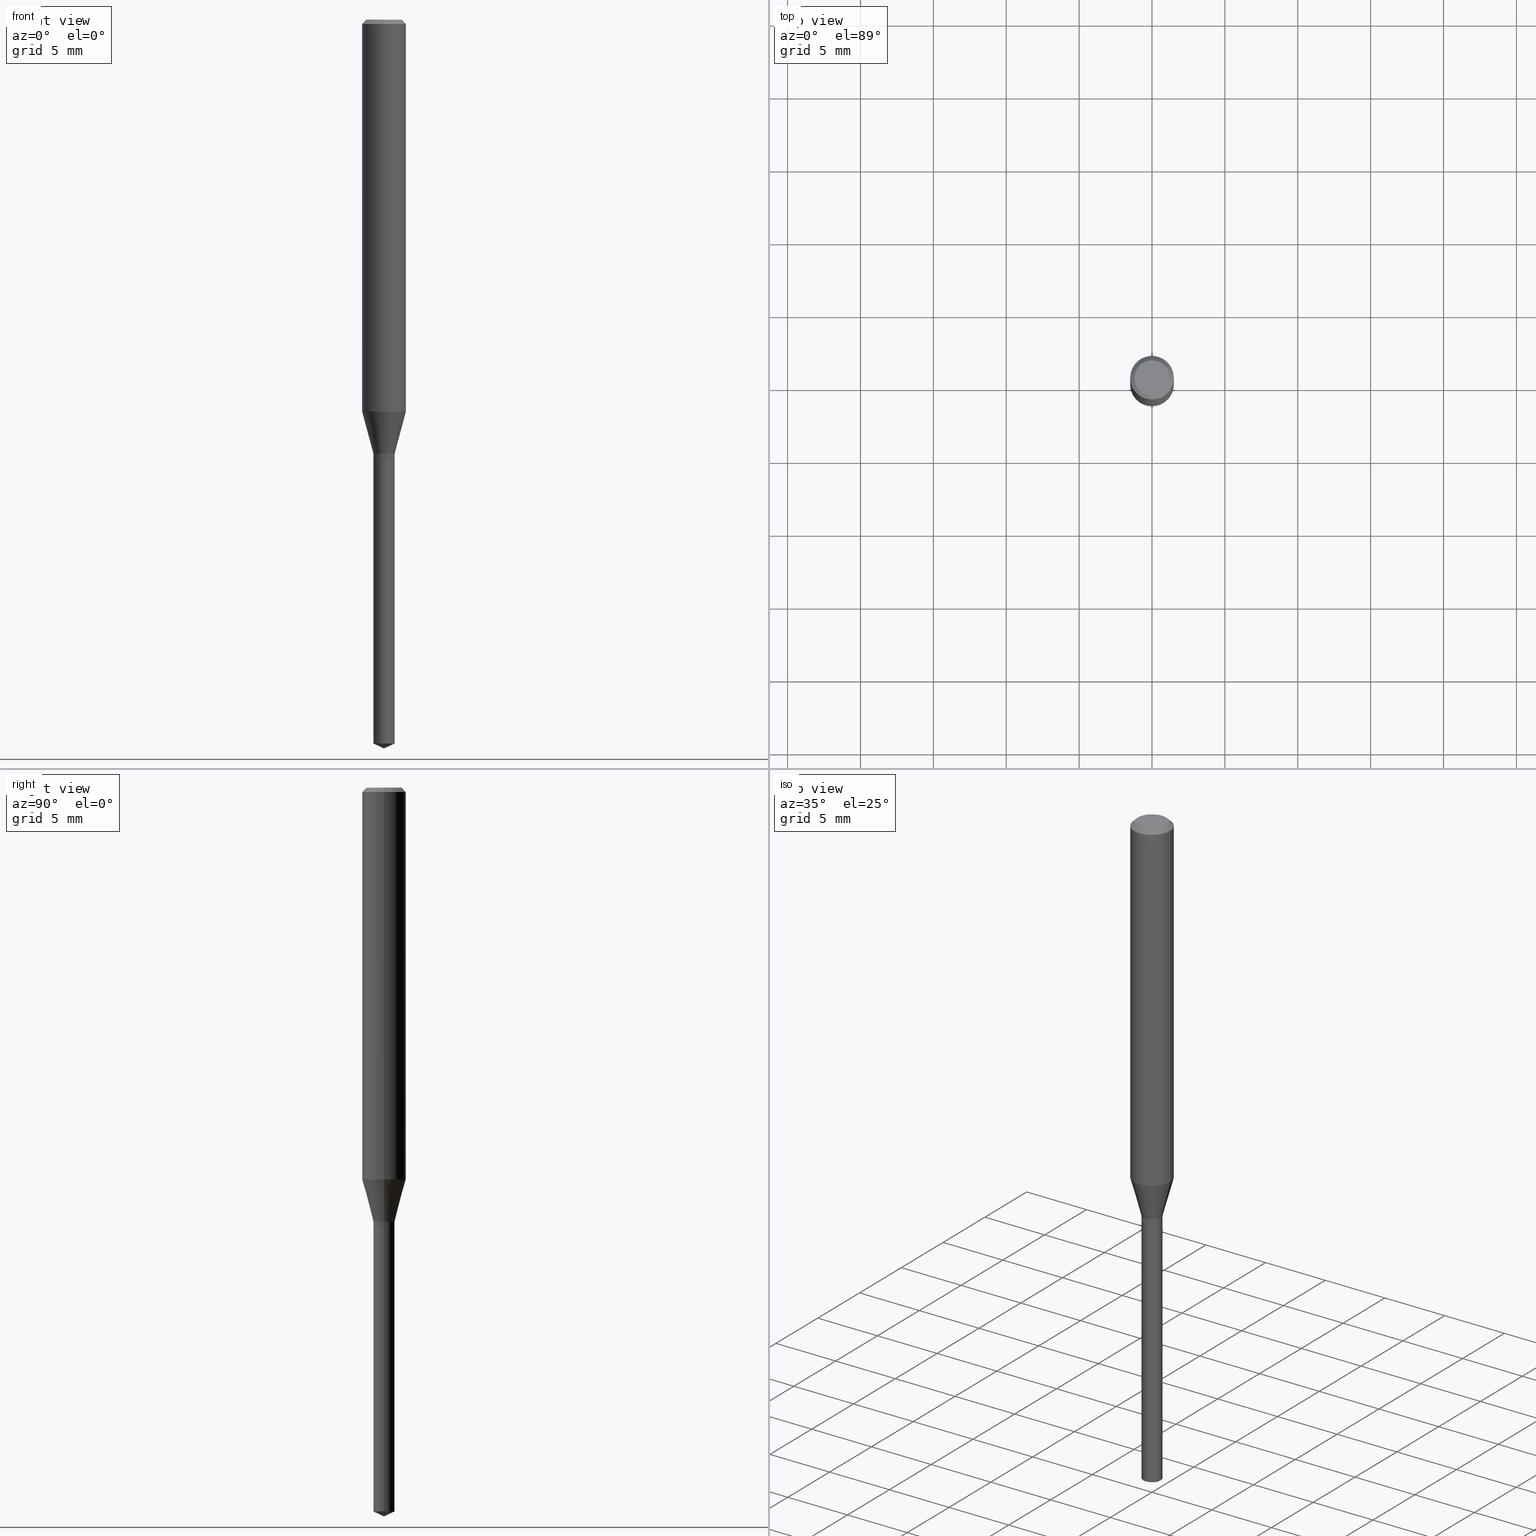
[diagram: canonical four-view strip — front | top / right | iso, engineering-drawing reading convention]
A machine part, canonical four-view strip (front | top / right | iso — engineering-drawing reading convention). The complete STEP part file that produces these views, byte-faithful:
ISO-10303-21;
HEADER;
FILE_DESCRIPTION (( 'STEP AP203' ),
    '1' );
FILE_NAME ('07535.STEP',
    '2024-04-23T22:36:47',
    ( '' ),
    ( '' ),
    'SwSTEP 2.0',
    'SolidWorks 2023',
    '' );
FILE_SCHEMA (( 'CONFIG_CONTROL_DESIGN' ));
ENDSEC;

DATA;
#1 = DIRECTION ( 'NONE',  ( 2.438088387897960049E-29, -3.491481338843145188E-15, -1.000000000000000000 ) ) ;
#2 = DATE_AND_TIME ( #99, #236 ) ;
#3 = LINE ( 'NONE', #390, #402 ) ;
#4 = CONICAL_SURFACE ( 'NONE', #19, 0.05904999999999999832, 0.7853981633974453924 ) ;
#5 = DIRECTION ( 'NONE',  ( 1.000000000000000000, -6.982962677686266711E-15, 0.000000000000000000 ) ) ;
#6 = CC_DESIGN_APPROVAL ( #318, ( #242 ) ) ;
#7 = CARTESIAN_POINT ( 'NONE',  ( 0.02855000000000000593, -4.321406453086159539E-15, -1.180599999999999650 ) ) ;
#8 = VERTEX_POINT ( 'NONE', #328 ) ;
#9 = DIRECTION ( 'NONE',  ( 1.000000000000000000, -6.982962677686265922E-15, 4.876176775795935793E-29 ) ) ;
#10 = EDGE_CURVE ( 'NONE', #353, #35, #292, .T. ) ;
#11 = CARTESIAN_POINT ( 'NONE',  ( -0.05904999999999999832, 3.711095515056362547E-16, -0.01181000000000006697 ) ) ;
#12 = AXIS2_PLACEMENT_3D ( 'NONE', #252, #24, #107 ) ;
#13 = DIRECTION ( 'NONE',  ( -2.445468806185136597E-29, 3.491481338843145583E-15, 1.000000000000000000 ) ) ;
#14 = CARTESIAN_POINT ( 'NONE',  ( -9.146439411113230710E-28, 1.305869142145323662E-13, 37.40157874015748263 ) ) ;
#15 = CARTESIAN_POINT ( 'NONE',  ( 4.781348614218893479E-29, -6.826498632420079557E-15, -1.955186916359675120 ) ) ;
#16 = CARTESIAN_POINT ( 'NONE',  ( 2.888343206985264877E-29, -4.123788609307639024E-15, -1.181099999999999817 ) ) ;
#17 = CIRCLE ( 'NONE', #37, 0.02854999999999999899 ) ;
#18 = PERSON_AND_ORGANIZATION ( #336, #428 ) ;
#19 = AXIS2_PLACEMENT_3D ( 'NONE', #185, #489, #152 ) ;
#20 = ORIENTED_EDGE ( 'NONE', *, *, #305, .T. ) ;
#21 = PERSON_AND_ORGANIZATION ( #336, #428 ) ;
#22 = DIRECTION ( 'NONE',  ( 0.2588190451025214611, 1.565188264969621573E-15, 0.9659258262890682012 ) ) ;
#23 = DATE_AND_TIME ( #443, #404 ) ;
#24 = DIRECTION ( 'NONE',  ( -2.445468806185136597E-29, 3.491481338843145583E-15, 1.000000000000000000 ) ) ;
#25 = EDGE_CURVE ( 'NONE', #246, #8, #160, .T. ) ;
#26 = AXIS2_PLACEMENT_3D ( 'NONE', #110, #347, #45 ) ;
#27 = DIRECTION ( 'NONE',  ( -2.445468806185136597E-29, 3.491481338843145583E-15, 1.000000000000000000 ) ) ;
#28 = LOCAL_TIME ( 18, 36, 47.00000000000000000, #101 ) ;
#29 = EDGE_LOOP ( 'NONE', ( #49, #302, #263, #85 ) ) ;
#30 = CARTESIAN_POINT ( 'NONE',  ( 2.888098660104662452E-31, -4.123439461173777798E-17, -0.01181000000000006697 ) ) ;
#31 = ORIENTED_EDGE ( 'NONE', *, *, #191, .F. ) ;
#32 = APPLICATION_CONTEXT ( 'configuration controlled 3d designs of mechanical parts and assemblies' ) ;
#33 = MANIFOLD_SOLID_BREP ( 'Body-Move/Copy2[2]', #310 ) ;
#34 = CARTESIAN_POINT ( 'NONE',  ( -0.05905000000000013710, -3.276759618944889162E-15, -1.058672450369148921 ) ) ;
#35 = VERTEX_POINT ( 'NONE', #459 ) ;
#36 = DIRECTION ( 'NONE',  ( 1.000000000000000000, -6.982962677686259611E-15, 0.000000000000000000 ) ) ;
#37 = AXIS2_PLACEMENT_3D ( 'NONE', #335, #146, #256 ) ;
#38 = EDGE_CURVE ( 'NONE', #246, #231, #323, .T. ) ;
#39 = PLANE ( 'NONE',  #277 ) ;
#40 = EDGE_CURVE ( 'NONE', #231, #8, #325, .T. ) ;
#41 = VERTEX_POINT ( 'NONE', #461 ) ;
#42 = EDGE_CURVE ( 'NONE', #195, #35, #167, .T. ) ;
#43 = CYLINDRICAL_SURFACE ( 'NONE', #60, 0.05905000000000006771 ) ;
#44 = ORIENTED_EDGE ( 'NONE', *, *, #10, .F. ) ;
#45 = DIRECTION ( 'NONE',  ( 1.000000000000000000, -6.982962677686259611E-15, 0.000000000000000000 ) ) ;
#46 = ADVANCED_FACE ( 'NONE', ( #282 ), #435, .T. ) ;
#47 = EDGE_LOOP ( 'NONE', ( #233, #411, #488, #381 ) ) ;
#48 = DIRECTION ( 'NONE',  ( -2.445468806185136877E-29, 3.491481338843145188E-15, 1.000000000000000000 ) ) ;
#49 = ORIENTED_EDGE ( 'NONE', *, *, #113, .F. ) ;
#50 =( LENGTH_UNIT ( ) NAMED_UNIT ( * ) SI_UNIT ( $, .METRE. ) );
#51 = DIRECTION ( 'NONE',  ( 1.000000000000000000, -6.982962677686259611E-15, 0.000000000000000000 ) ) ;
#52 = APPLICATION_CONTEXT ( 'configuration controlled 3d designs of mechanical parts and assemblies' ) ;
#53 = CONICAL_SURFACE ( 'NONE', #105, 0.05904999999999999832, 0.7853981633974453924 ) ;
#54 = VECTOR ( 'NONE', #90, 39.37007874015748143 ) ;
#55 = EDGE_CURVE ( 'NONE', #195, #172, #140, .T. ) ;
#56 =( NAMED_UNIT ( * ) PLANE_ANGLE_UNIT ( ) SI_UNIT ( $, .RADIAN. ) );
#57 = EDGE_LOOP ( 'NONE', ( #375, #416, #266, #304 ) ) ;
#58 = APPLICATION_PROTOCOL_DEFINITION ( 'international standard', 'config_control_design', 1994, #52 ) ;
#59 = ORIENTED_EDGE ( 'NONE', *, *, #296, .F. ) ;
#60 = AXIS2_PLACEMENT_3D ( 'NONE', #83, #232, #119 ) ;
#61 = DATE_TIME_ROLE ( 'classification_date' ) ;
#62 = LOCAL_TIME ( 18, 36, 47.00000000000000000, #136 ) ;
#63 = CARTESIAN_POINT ( 'NONE',  ( 2.867312175252072391E-29, -4.093761869793587585E-15, -1.172499999999999876 ) ) ;
#64 = CALENDAR_DATE ( 2024, 23, 4 ) ;
#65 = DIRECTION ( 'NONE',  ( 1.000000000000000000, -6.982962677686275388E-15, 0.000000000000000000 ) ) ;
#66 = DIRECTION ( 'NONE',  ( 1.000000000000000000, -6.982962677686266711E-15, 4.876176775795935793E-29 ) ) ;
#67 = ORIENTED_EDGE ( 'NONE', *, *, #213, .F. ) ;
#68 = APPROVAL_PERSON_ORGANIZATION ( #478, #318, #405 ) ;
#69 = DIRECTION ( 'NONE',  ( -2.445468806185136597E-29, 3.491481338843145583E-15, 1.000000000000000000 ) ) ;
#70 = EDGE_LOOP ( 'NONE', ( #135, #270, #77 ) ) ;
#71 = CARTESIAN_POINT ( 'NONE',  ( 0.000000000000000000, 0.000000000000000000, 0.000000000000000000 ) ) ;
#72 = ORIENTED_EDGE ( 'NONE', *, *, #315, .T. ) ;
#73 = CARTESIAN_POINT ( 'NONE',  ( 2.588950453345336253E-29, -3.696335104411230233E-15, -1.058672450369148921 ) ) ;
#74 = EDGE_LOOP ( 'NONE', ( #183, #111 ) ) ;
#75 = CARTESIAN_POINT ( 'NONE',  ( 0.02855000000000000593, -4.293125454241531181E-15, -1.172499999999999876 ) ) ;
#76 = AXIS2_PLACEMENT_3D ( 'NONE', #117, #384, #5 ) ;
#77 = ORIENTED_EDGE ( 'NONE', *, *, #474, .F. ) ;
#78 = CARTESIAN_POINT ( 'NONE',  ( -0.05904999999999999832, -1.449209264045143502E-15, -0.01181000000000006697 ) ) ;
#79 = CC_DESIGN_DATE_AND_TIME_ASSIGNMENT ( #400, #61, ( #480 ) ) ;
#80 = ORIENTED_EDGE ( 'NONE', *, *, #25, .T. ) ;
#81 = CARTESIAN_POINT ( 'NONE',  ( 2.888343206985264877E-29, -4.123788609307639024E-15, -1.181099999999999817 ) ) ;
#82 = ORIENTED_EDGE ( 'NONE', *, *, #166, .T. ) ;
#83 = CARTESIAN_POINT ( 'NONE',  ( 0.000000000000000000, 0.000000000000000000, 0.000000000000000000 ) ) ;
#84 = VECTOR ( 'NONE', #22, 39.37007874015747433 ) ;
#85 = ORIENTED_EDGE ( 'NONE', *, *, #315, .F. ) ;
#86 =( CONVERSION_BASED_UNIT ( 'INCH', #324 ) LENGTH_UNIT ( ) NAMED_UNIT ( #186 ) );
#87 = CC_DESIGN_DATE_AND_TIME_ASSIGNMENT ( #23, #176, ( #148 ) ) ;
#88 = FACE_OUTER_BOUND ( 'NONE', #237, .T. ) ;
#89 = VECTOR ( 'NONE', #180, 39.37007874015748854 ) ;
#90 = DIRECTION ( 'NONE',  ( -2.445468806185136877E-29, 3.491481338843145188E-15, 1.000000000000000000 ) ) ;
#91 = ORIENTED_EDGE ( 'NONE', *, *, #477, .F. ) ;
#92 = EDGE_CURVE ( 'NONE', #316, #195, #248, .T. ) ;
#93 = DIRECTION ( 'NONE',  ( -2.445468806185136597E-29, 3.491481338843145583E-15, 1.000000000000000000 ) ) ;
#94 = ORIENTED_EDGE ( 'NONE', *, *, #42, .T. ) ;
#95 = ADVANCED_FACE ( 'NONE', ( #177 ), #486, .T. ) ;
#96 = PERSON_AND_ORGANIZATION_ROLE ( 'creator' ) ;
#97 = CARTESIAN_POINT ( 'NONE',  ( -0.02855000000000000593, -3.890901918734078447E-15, -1.172499999999999876 ) ) ;
#98 = CONICAL_SURFACE ( 'NONE', #341, 0.02804999999999999508, 0.7853981633972860754 ) ;
#99 = CALENDAR_DATE ( 2024, 23, 4 ) ;
#100 = CARTESIAN_POINT ( 'NONE',  ( 2.867312175252072391E-29, -4.093761869793587585E-15, -1.172499999999999876 ) ) ;
#101 = COORDINATED_UNIVERSAL_TIME_OFFSET ( 5, 0, .BEHIND. ) ;
#102 = LINE ( 'NONE', #295, #301 ) ;
#103 = DIRECTION ( 'NONE',  ( 1.000000000000000000, -6.982962677686264344E-15, 0.000000000000000000 ) ) ;
#104 = EDGE_LOOP ( 'NONE', ( #363, #482, #82, #453 ) ) ;
#105 = AXIS2_PLACEMENT_3D ( 'NONE', #121, #115, #273 ) ;
#106 = CIRCLE ( 'NONE', #457, 0.02854999999999999899 ) ;
#107 = DIRECTION ( 'NONE',  ( 1.000000000000000000, -6.982962677686275388E-15, 0.000000000000000000 ) ) ;
#108 = ORIENTED_EDGE ( 'NONE', *, *, #129, .T. ) ;
#109 = CC_DESIGN_PERSON_AND_ORGANIZATION_ASSIGNMENT ( #330, #361, ( #242 ) ) ;
#110 = CARTESIAN_POINT ( 'NONE',  ( 2.888343206985264877E-29, -4.123788609307639024E-15, -1.181099999999999817 ) ) ;
#111 = ORIENTED_EDGE ( 'NONE', *, *, #430, .T. ) ;
#112 = DIRECTION ( 'NONE',  ( 2.438088387897960049E-29, -3.491481338843145188E-15, -1.000000000000000000 ) ) ;
#113 = EDGE_CURVE ( 'NONE', #153, #172, #139, .T. ) ;
#114 = ORIENTED_EDGE ( 'NONE', *, *, #430, .F. ) ;
#115 = DIRECTION ( 'NONE',  ( 2.445468806185136597E-29, -3.491481338843145583E-15, -1.000000000000000000 ) ) ;
#116 = CIRCLE ( 'NONE', #184, 0.02804999999999999508 ) ;
#117 = CARTESIAN_POINT ( 'NONE',  ( 2.888098660104662452E-31, -4.123439461173777798E-17, -0.01181000000000006697 ) ) ;
#118 = UNCERTAINTY_MEASURE_WITH_UNIT (LENGTH_MEASURE( 1.000000000000000082E-05 ), #86, 'distance_accuracy_value', 'NONE');
#119 = DIRECTION ( 'NONE',  ( 1.000000000000000000, -6.982962677686266711E-15, 4.876176775795936353E-29 ) ) ;
#120 = ORIENTED_EDGE ( 'NONE', *, *, #42, .F. ) ;
#121 = CARTESIAN_POINT ( 'NONE',  ( 2.888098660104662452E-31, -4.123439461173777798E-17, -0.01181000000000006697 ) ) ;
#122 = EDGE_LOOP ( 'NONE', ( #203, #339, #285, #59 ) ) ;
#123 = DIRECTION ( 'NONE',  ( -2.438088387897960049E-29, 3.491481338843145188E-15, 1.000000000000000000 ) ) ;
#124 = VECTOR ( 'NONE', #403, 39.37007874015747433 ) ;
#125 = AXIS2_PLACEMENT_3D ( 'NONE', #165, #436, #317 ) ;
#126 = CARTESIAN_POINT ( 'NONE',  ( -1.127900514452373896E-29, -9.875278208802936049E-15, -1.181099999999999817 ) ) ;
#127 = EDGE_CURVE ( 'NONE', #260, #153, #211, .T. ) ;
#128 = DIRECTION ( 'NONE',  ( -2.445468806185136597E-29, 3.491481338843145583E-15, 1.000000000000000000 ) ) ;
#129 = EDGE_CURVE ( 'NONE', #396, #260, #445, .T. ) ;
#130 = EDGE_CURVE ( 'NONE', #153, #316, #356, .T. ) ;
#131 = DIRECTION ( 'NONE',  ( -2.445468806185136597E-29, 3.491481338843145583E-15, 1.000000000000000000 ) ) ;
#132 = PRODUCT_RELATED_PRODUCT_CATEGORY ( 'detail', '', ( #238 ) ) ;
#133 = DIRECTION ( 'NONE',  ( -2.445468806185136877E-29, 3.491481338843145188E-15, 1.000000000000000000 ) ) ;
#134 = EDGE_CURVE ( 'NONE', #226, #313, #17, .T. ) ;
#135 = ORIENTED_EDGE ( 'NONE', *, *, #25, .F. ) ;
#136 = COORDINATED_UNIVERSAL_TIME_OFFSET ( 5, 0, .BEHIND. ) ;
#137 = DIRECTION ( 'NONE',  ( 1.000000000000000000, -6.982962677686266711E-15, 0.000000000000000000 ) ) ;
#138 = COORDINATED_UNIVERSAL_TIME_OFFSET ( 5, 0, .BEHIND. ) ;
#139 = LINE ( 'NONE', #97, #124 ) ;
#140 = CIRCLE ( 'NONE', #149, 0.05905000000000013710 ) ;
#141 = APPROVAL_STATUS ( 'not_yet_approved' ) ;
#142 = AXIS2_PLACEMENT_3D ( 'NONE', #243, #199, #465 ) ;
#143 = DIRECTION ( 'NONE',  ( -2.445468806185136877E-29, 3.491481338843145188E-15, 1.000000000000000000 ) ) ;
#144 = DIRECTION ( 'NONE',  ( 1.000000000000000000, -6.982962677686266711E-15, 0.000000000000000000 ) ) ;
#145 = EDGE_LOOP ( 'NONE', ( #67, #151, #244, #169 ) ) ;
#146 = DIRECTION ( 'NONE',  ( -2.445468806185136597E-29, 3.491481338843145583E-15, 1.000000000000000000 ) ) ;
#147 = EDGE_LOOP ( 'NONE', ( #446, #80, #299 ) ) ;
#148 = PRODUCT_DEFINITION ( 'UNKNOWN', '', #242, #351 ) ;
#149 = AXIS2_PLACEMENT_3D ( 'NONE', #224, #331, #103 ) ;
#150 = CARTESIAN_POINT ( 'NONE',  ( 6.834249910534327735E-29, 1.526974377236777075E-15, -1.181099999999999817 ) ) ;
#151 = ORIENTED_EDGE ( 'NONE', *, *, #158, .F. ) ;
#152 = DIRECTION ( 'NONE',  ( -1.000000000000000000, 6.982962677686266711E-15, 0.000000000000000000 ) ) ;
#153 = VERTEX_POINT ( 'NONE', #333 ) ;
#154 = CARTESIAN_POINT ( 'NONE',  ( -0.02854999999999999899, -5.272283669804350547E-15, -1.181099999999999817 ) ) ;
#155 = APPROVAL_DATE_TIME ( #2, #395 ) ;
#156 = LINE ( 'NONE', #454, #281 ) ;
#157 = CIRCLE ( 'NONE', #267, 0.04724000000000000421 ) ;
#158 = EDGE_CURVE ( 'NONE', #229, #41, #157, .T. ) ;
#159 = SHAPE_DEFINITION_REPRESENTATION ( #286, #261 ) ;
#160 = LINE ( 'NONE', #358, #370 ) ;
#161 = DIRECTION ( 'NONE',  ( 1.000000000000000000, -6.982962677686275388E-15, 0.000000000000000000 ) ) ;
#162 = DIRECTION ( 'NONE',  ( 1.000000000000000000, -6.982962677686259611E-15, 0.000000000000000000 ) ) ;
#163 = DIRECTION ( 'NONE',  ( 1.000000000000000000, 0.000000000000000000, 0.000000000000000000 ) ) ;
#164 = ADVANCED_FACE ( 'NONE', ( #406 ), #479, .T. ) ;
#165 = CARTESIAN_POINT ( 'NONE',  ( 4.781348614218893479E-29, -6.826498632420079557E-15, -1.955186916359675120 ) ) ;
#166 = EDGE_CURVE ( 'NONE', #208, #255, #102, .T. ) ;
#167 = LINE ( 'NONE', #467, #409 ) ;
#168 = PERSON_AND_ORGANIZATION ( #336, #428 ) ;
#169 = ORIENTED_EDGE ( 'NONE', *, *, #10, .T. ) ;
#170 = LOCAL_TIME ( 18, 36, 47.00000000000000000, #290 ) ;
#171 = APPROVAL_DATE_TIME ( #214, #462 ) ;
#172 = VERTEX_POINT ( 'NONE', #34 ) ;
#173 = APPROVAL_ROLE ( '' ) ;
#174 = DIRECTION ( 'NONE',  ( 0.7071067811865454633, -7.319954787623248157E-15, -0.7071067811865495711 ) ) ;
#175 = CC_DESIGN_PERSON_AND_ORGANIZATION_ASSIGNMENT ( #367, #96, ( #148 ) ) ;
#176 = DATE_TIME_ROLE ( 'creation_date' ) ;
#177 = FACE_OUTER_BOUND ( 'NONE', #29, .T. ) ;
#178 = VECTOR ( 'NONE', #174, 39.37007874015748143 ) ;
#179 = VECTOR ( 'NONE', #432, 39.37007874015748143 ) ;
#180 = DIRECTION ( 'NONE',  ( -0.7071067811864326647, 7.493145998869937642E-15, 0.7071067811866621478 ) ) ;
#181 = CARTESIAN_POINT ( 'NONE',  ( 0.05904999999999999832, -4.463468013801466955E-16, -0.01181000000000006697 ) ) ;
#182 = CARTESIAN_POINT ( 'NONE',  ( -0.02804999999999999508, -3.924481371926930785E-15, -1.181099999999999817 ) ) ;
#183 = ORIENTED_EDGE ( 'NONE', *, *, #158, .T. ) ;
#184 = AXIS2_PLACEMENT_3D ( 'NONE', #485, #460, #303 ) ;
#185 = CARTESIAN_POINT ( 'NONE',  ( 2.888098660104662452E-31, -4.123439461173777798E-17, -0.01181000000000006697 ) ) ;
#186 = DIMENSIONAL_EXPONENTS ( 1.000000000000000000, 0.000000000000000000, 0.000000000000000000, 0.000000000000000000, 0.000000000000000000, 0.000000000000000000, 0.000000000000000000 ) ;
#187 = CARTESIAN_POINT ( 'NONE',  ( 4.132873053354867254E-48, -5.900647395337818946E-34, -1.690012582823346072E-19 ) ) ;
#188 = ORIENTED_EDGE ( 'NONE', *, *, #269, .F. ) ;
#189 = FACE_OUTER_BOUND ( 'NONE', #274, .T. ) ;
#190 = EDGE_LOOP ( 'NONE', ( #348, #337, #31, #120 ) ) ;
#191 = EDGE_CURVE ( 'NONE', #35, #353, #241, .T. ) ;
#192 = CARTESIAN_POINT ( 'NONE',  ( 2.887120472582171515E-29, -4.122042868638216732E-15, -1.180599999999999650 ) ) ;
#193 = CIRCLE ( 'NONE', #293, 0.02855000000000000593 ) ;
#194 = AXIS2_PLACEMENT_3D ( 'NONE', #73, #225, #345 ) ;
#195 = VERTEX_POINT ( 'NONE', #215 ) ;
#196 = DIRECTION ( 'NONE',  ( 0.000000000000000000, 0.000000000000000000, 1.000000000000000000 ) ) ;
#197 = MANIFOLD_SOLID_BREP ( 'Body-Move/Copy2[1]', #401 ) ;
#198 = DIRECTION ( 'NONE',  ( 1.000000000000000000, -6.982962677686266711E-15, 0.000000000000000000 ) ) ;
#199 = DIRECTION ( 'NONE',  ( -2.445468806185136597E-29, 3.491481338843145583E-15, 1.000000000000000000 ) ) ;
#200 = CIRCLE ( 'NONE', #448, 0.02855000000000000593 ) ;
#201 = CC_DESIGN_APPROVAL ( #462, ( #148 ) ) ;
#202 = CYLINDRICAL_SURFACE ( 'NONE', #142, 0.02855000000000000593 ) ;
#203 = ORIENTED_EDGE ( 'NONE', *, *, #269, .T. ) ;
#204 = ADVANCED_FACE ( 'NONE', ( #253 ), #98, .T. ) ;
#205 = LINE ( 'NONE', #11, #470 ) ;
#206 = ORIENTED_EDGE ( 'NONE', *, *, #329, .F. ) ;
#207 = APPROVAL_DATE_TIME ( #288, #318 ) ;
#208 = VERTEX_POINT ( 'NONE', #483 ) ;
#209 = APPROVAL_PERSON_ORGANIZATION ( #210, #395, #365 ) ;
#210 = PERSON_AND_ORGANIZATION ( #336, #428 ) ;
#211 = LINE ( 'NONE', #473, #311 ) ;
#212 = EDGE_CURVE ( 'NONE', #316, #153, #193, .T. ) ;
#213 = EDGE_CURVE ( 'NONE', #41, #35, #366, .T. ) ;
#214 = DATE_AND_TIME ( #64, #62 ) ;
#215 = CARTESIAN_POINT ( 'NONE',  ( 0.05905000000000013710, -4.108679050528605153E-15, -1.058672450369148921 ) ) ;
#216 = ADVANCED_FACE ( 'NONE', ( #444 ), #413, .T. ) ;
#217 = ADVANCED_FACE ( 'NONE', ( #218 ), #455, .T. ) ;
#218 = FACE_OUTER_BOUND ( 'NONE', #147, .T. ) ;
#219 = ORIENTED_EDGE ( 'NONE', *, *, #134, .F. ) ;
#220 = AXIS2_PLACEMENT_3D ( 'NONE', #394, #196, #163 ) ;
#221 = ADVANCED_FACE ( 'NONE', ( #312 ), #362, .T. ) ;
#222 = CARTESIAN_POINT ( 'NONE',  ( 0.02855000000000000593, -4.293125454241531181E-15, -1.172499999999999876 ) ) ;
#223 = EDGE_LOOP ( 'NONE', ( #257, #372, #426, #456 ) ) ;
#224 = CARTESIAN_POINT ( 'NONE',  ( 2.588950453345336253E-29, -3.696335104411230233E-15, -1.058672450369148921 ) ) ;
#225 = DIRECTION ( 'NONE',  ( -2.445468806185136597E-29, 3.491481338843145583E-15, 1.000000000000000000 ) ) ;
#226 = VERTEX_POINT ( 'NONE', #154 ) ;
#227 = AXIS2_PLACEMENT_3D ( 'NONE', #81, #458, #450 ) ;
#228 = DIRECTION ( 'NONE',  ( -2.445468806185136597E-29, 3.491481338843145583E-15, 1.000000000000000000 ) ) ;
#229 = VERTEX_POINT ( 'NONE', #340 ) ;
#230 = LINE ( 'NONE', #383, #54 ) ;
#231 = VERTEX_POINT ( 'NONE', #309 ) ;
#232 = DIRECTION ( 'NONE',  ( -2.445468806185136597E-29, 3.491481338843145583E-15, 1.000000000000000000 ) ) ;
#233 = ORIENTED_EDGE ( 'NONE', *, *, #474, .T. ) ;
#234 = FACE_OUTER_BOUND ( 'NONE', #360, .T. ) ;
#235 = CIRCLE ( 'NONE', #194, 0.05905000000000013710 ) ;
#236 = LOCAL_TIME ( 18, 36, 47.00000000000000000, #138 ) ;
#237 = EDGE_LOOP ( 'NONE', ( #206, #308 ) ) ;
#238 = PRODUCT ( '07535', '07535', '', ( #322 ) ) ;
#239 = DIRECTION ( 'NONE',  ( -0.7071067811865454633, 2.468850131082235367E-15, -0.7071067811865495711 ) ) ;
#240 = ADVANCED_FACE ( 'NONE', ( #234 ), #43, .T. ) ;
#241 = CIRCLE ( 'NONE', #320, 0.05904999999999999832 ) ;
#242 = PRODUCT_DEFINITION_FORMATION_WITH_SPECIFIED_SOURCE ( 'ANY', '', #238, .NOT_KNOWN. ) ;
#243 = CARTESIAN_POINT ( 'NONE',  ( 0.000000000000000000, 0.000000000000000000, 0.000000000000000000 ) ) ;
#244 = ORIENTED_EDGE ( 'NONE', *, *, #477, .T. ) ;
#245 = DIRECTION ( 'NONE',  ( 1.000000000000000000, -6.982962677686266711E-15, 4.876185090822587894E-29 ) ) ;
#246 = VERTEX_POINT ( 'NONE', #271 ) ;
#247 = CALENDAR_DATE ( 2024, 23, 4 ) ;
#248 = LINE ( 'NONE', #222, #84 ) ;
#249 = CC_DESIGN_APPROVAL ( #395, ( #480 ) ) ;
#250 = PERSON_AND_ORGANIZATION_ROLE ( 'design_supplier' ) ;
#251 = ADVANCED_FACE ( 'NONE', ( #423 ), #386, .T. ) ;
#252 = CARTESIAN_POINT ( 'NONE',  ( 2.867312175252072391E-29, -4.093761869793587585E-15, -1.172499999999999876 ) ) ;
#253 = FACE_OUTER_BOUND ( 'NONE', #104, .T. ) ;
#254 = CC_DESIGN_PERSON_AND_ORGANIZATION_ASSIGNMENT ( #18, #250, ( #242 ) ) ;
#255 = VERTEX_POINT ( 'NONE', #7 ) ;
#256 = DIRECTION ( 'NONE',  ( 1.000000000000000000, -6.982962677686259611E-15, 0.000000000000000000 ) ) ;
#257 = ORIENTED_EDGE ( 'NONE', *, *, #212, .T. ) ;
#258 = APPROVAL_PERSON_ORGANIZATION ( #21, #462, #173 ) ;
#259 = CARTESIAN_POINT ( 'NONE',  ( 0.000000000000000000, 0.000000000000000000, 0.000000000000000000 ) ) ;
#260 = VERTEX_POINT ( 'NONE', #307 ) ;
#261 = ADVANCED_BREP_SHAPE_REPRESENTATION ( '07535', ( #197, #33, #220 ), #449 ) ;
#262 = PLANE ( 'NONE',  #334 ) ;
#263 = ORIENTED_EDGE ( 'NONE', *, *, #92, .T. ) ;
#264 = FACE_OUTER_BOUND ( 'NONE', #377, .T. ) ;
#265 = CC_DESIGN_PERSON_AND_ORGANIZATION_ASSIGNMENT ( #168, #284, ( #238 ) ) ;
#266 = ORIENTED_EDGE ( 'NONE', *, *, #296, .T. ) ;
#267 = AXIS2_PLACEMENT_3D ( 'NONE', #374, #408, #289 ) ;
#268 = FACE_OUTER_BOUND ( 'NONE', #145, .T. ) ;
#269 = EDGE_CURVE ( 'NONE', #255, #260, #276, .T. ) ;
#270 = ORIENTED_EDGE ( 'NONE', *, *, #38, .T. ) ;
#271 = CARTESIAN_POINT ( 'NONE',  ( 4.813905344975441835E-29, -6.872981015512731707E-15, -1.968500000000000139 ) ) ;
#272 = CARTESIAN_POINT ( 'NONE',  ( 4.813905344975441835E-29, -6.872981015512731707E-15, -1.968500000000000139 ) ) ;
#273 = DIRECTION ( 'NONE',  ( -1.000000000000000000, 6.982962677686266711E-15, 0.000000000000000000 ) ) ;
#274 = EDGE_LOOP ( 'NONE', ( #114, #326, #490, #91 ) ) ;
#275 = FACE_OUTER_BOUND ( 'NONE', #70, .T. ) ;
#276 = CIRCLE ( 'NONE', #418, 0.02855000000000000593 ) ;
#277 = AXIS2_PLACEMENT_3D ( 'NONE', #187, #1, #421 ) ;
#278 = FACE_OUTER_BOUND ( 'NONE', #223, .T. ) ;
#279 = PLANE ( 'NONE',  #283 ) ;
#280 = EDGE_CURVE ( 'NONE', #260, #255, #200, .T. ) ;
#281 = VECTOR ( 'NONE', #48, 39.37007874015748143 ) ;
#282 = FACE_OUTER_BOUND ( 'NONE', #47, .T. ) ;
#283 = AXIS2_PLACEMENT_3D ( 'NONE', #126, #123, #9 ) ;
#284 = PERSON_AND_ORGANIZATION_ROLE ( 'design_owner' ) ;
#285 = ORIENTED_EDGE ( 'NONE', *, *, #212, .F. ) ;
#286 = PRODUCT_DEFINITION_SHAPE ( 'NONE', 'NONE',  #148 ) ;
#287 = ADVANCED_FACE ( 'NONE', ( #189 ), #53, .T. ) ;
#288 = DATE_AND_TIME ( #294, #28 ) ;
#289 = DIRECTION ( 'NONE',  ( 1.000000000000000000, -6.982962677686266711E-15, 4.876185090822587894E-29 ) ) ;
#290 = COORDINATED_UNIVERSAL_TIME_OFFSET ( 5, 0, .BEHIND. ) ;
#291 = DIRECTION ( 'NONE',  ( -2.445468806185136597E-29, 3.491481338843145583E-15, 1.000000000000000000 ) ) ;
#292 = CIRCLE ( 'NONE', #76, 0.05904999999999999832 ) ;
#293 = AXIS2_PLACEMENT_3D ( 'NONE', #63, #447, #441 ) ;
#294 = CALENDAR_DATE ( 2024, 23, 4 ) ;
#295 = CARTESIAN_POINT ( 'NONE',  ( 0.02804999999999999508, -4.319660712416738825E-15, -1.181099999999999817 ) ) ;
#296 = EDGE_CURVE ( 'NONE', #255, #316, #3, .T. ) ;
#297 = DIRECTION ( 'NONE',  ( 0.7071067811864326647, -2.468850131081054837E-15, 0.7071067811866621478 ) ) ;
#298 = ADVANCED_FACE ( 'NONE', ( #264 ), #262, .F. ) ;
#299 = ORIENTED_EDGE ( 'NONE', *, *, #40, .F. ) ;
#300 = DIRECTION ( 'NONE',  ( 1.000000000000000000, -6.982962677686259611E-15, 0.000000000000000000 ) ) ;
#301 = VECTOR ( 'NONE', #297, 39.37007874015748854 ) ;
#302 = ORIENTED_EDGE ( 'NONE', *, *, #130, .T. ) ;
#303 = DIRECTION ( 'NONE',  ( 1.000000000000000000, -6.982962677686259611E-15, 0.000000000000000000 ) ) ;
#304 = ORIENTED_EDGE ( 'NONE', *, *, #130, .F. ) ;
#305 = EDGE_CURVE ( 'NONE', #8, #313, #156, .T. ) ;
#306 = EDGE_CURVE ( 'NONE', #396, #208, #116, .T. ) ;
#307 = CARTESIAN_POINT ( 'NONE',  ( -0.02855000000000000593, -3.905042418156393020E-15, -1.180599999999999650 ) ) ;
#308 = ORIENTED_EDGE ( 'NONE', *, *, #306, .F. ) ;
#309 = CARTESIAN_POINT ( 'NONE',  ( -0.02854999999999999205, -6.623638681360570419E-15, -1.955186916359675120 ) ) ;
#310 = CLOSED_SHELL ( 'NONE', ( #221, #287, #164, #484, #216, #393, #95, #240, #373, #382, #466, #204 ) ) ;
#311 = VECTOR ( 'NONE', #143, 39.37007874015748143 ) ;
#312 = FACE_OUTER_BOUND ( 'NONE', #437, .T. ) ;
#313 = VERTEX_POINT ( 'NONE', #344 ) ;
#314 = DIRECTION ( 'NONE',  ( -1.000000000000000000, 6.982962677686265922E-15, -4.876176775795935793E-29 ) ) ;
#315 = EDGE_CURVE ( 'NONE', #172, #195, #235, .T. ) ;
#316 = VERTEX_POINT ( 'NONE', #75 ) ;
#317 = DIRECTION ( 'NONE',  ( 1.000000000000000000, -6.982962677686259611E-15, 0.000000000000000000 ) ) ;
#318 = APPROVAL ( #141, 'UNSPECIFIED' ) ;
#319 = CARTESIAN_POINT ( 'NONE',  ( -0.02854999999999999899, -3.920928658248129886E-15, -1.181099999999999817 ) ) ;
#320 = AXIS2_PLACEMENT_3D ( 'NONE', #30, #69, #137 ) ;
#321 = CIRCLE ( 'NONE', #487, 0.02804999999999999508 ) ;
#322 = MECHANICAL_CONTEXT ( 'NONE', #32, 'mechanical' ) ;
#323 = LINE ( 'NONE', #272, #464 ) ;
#324 = LENGTH_MEASURE_WITH_UNIT ( LENGTH_MEASURE( 0.02539999999999999897 ), #50 );
#325 = CIRCLE ( 'NONE', #433, 0.02854999999999999899 ) ;
#326 = ORIENTED_EDGE ( 'NONE', *, *, #213, .T. ) ;
#327 = PERSON_AND_ORGANIZATION ( #336, #428 ) ;
#328 = CARTESIAN_POINT ( 'NONE',  ( 0.02854999999999999205, -7.025862216868022365E-15, -1.955186916359675120 ) ) ;
#329 = EDGE_CURVE ( 'NONE', #208, #396, #321, .T. ) ;
#330 = PERSON_AND_ORGANIZATION ( #336, #428 ) ;
#331 = DIRECTION ( 'NONE',  ( -2.445468806185136597E-29, 3.491481338843145583E-15, 1.000000000000000000 ) ) ;
#332 = APPROVAL_STATUS ( 'not_yet_approved' ) ;
#333 = CARTESIAN_POINT ( 'NONE',  ( -0.02855000000000000593, -3.905042418156393020E-15, -1.172499999999999876 ) ) ;
#334 = AXIS2_PLACEMENT_3D ( 'NONE', #150, #112, #314 ) ;
#335 = CARTESIAN_POINT ( 'NONE',  ( 2.888343206985264316E-29, -4.123788609307638235E-15, -1.181099999999999817 ) ) ;
#336 = PERSON ( 'UNSPECIFIED', 'UNSPECIFIED', 'UNSPECIFIED', ('UNSPECIFIED'), ('UNSPECIFIED'), ('UNSPECIFIED') ) ;
#337 = ORIENTED_EDGE ( 'NONE', *, *, #385, .T. ) ;
#338 = DIRECTION ( 'NONE',  ( 1.000000000000000000, -6.982962677686266711E-15, 4.876176775795936353E-29 ) ) ;
#339 = ORIENTED_EDGE ( 'NONE', *, *, #127, .T. ) ;
#340 = CARTESIAN_POINT ( 'NONE',  ( -0.04724000000000000421, 3.504923541997677355E-16, -3.380025165670481712E-19 ) ) ;
#341 = AXIS2_PLACEMENT_3D ( 'NONE', #439, #368, #300 ) ;
#342 = ORIENTED_EDGE ( 'NONE', *, *, #166, .F. ) ;
#343 = AXIS2_PLACEMENT_3D ( 'NONE', #359, #13, #392 ) ;
#344 = CARTESIAN_POINT ( 'NONE',  ( 0.02854999999999999899, -4.323152193755581043E-15, -1.181099999999999817 ) ) ;
#345 = DIRECTION ( 'NONE',  ( 1.000000000000000000, -6.982962677686264344E-15, 0.000000000000000000 ) ) ;
#346 = ORIENTED_EDGE ( 'NONE', *, *, #385, .F. ) ;
#347 = DIRECTION ( 'NONE',  ( -2.445468806185136597E-29, 3.491481338843145583E-15, 1.000000000000000000 ) ) ;
#348 = ORIENTED_EDGE ( 'NONE', *, *, #55, .T. ) ;
#349 = AXIS2_PLACEMENT_3D ( 'NONE', #369, #481, #144 ) ;
#350 = CONICAL_SURFACE ( 'NONE', #364, 84.42940631927518780, 1.134464013796319781 ) ;
#351 = DESIGN_CONTEXT ( 'detailed design', #52, 'design' ) ;
#352 = DIRECTION ( 'NONE',  ( -2.445468806185136597E-29, 3.491481338843145583E-15, 1.000000000000000000 ) ) ;
#353 = VERTEX_POINT ( 'NONE', #78 ) ;
#354 = CARTESIAN_POINT ( 'NONE',  ( -0.02804999999999999508, -3.921832144752819584E-15, -1.181099999999999817 ) ) ;
#355 = CARTESIAN_POINT ( 'NONE',  ( 8.265746106709734507E-48, -1.180129479067563789E-33, -3.380025165646692144E-19 ) ) ;
#356 = CIRCLE ( 'NONE', #388, 0.02855000000000000593 ) ;
#357 = APPLICATION_PROTOCOL_DEFINITION ( 'international standard', 'config_control_design', 1994, #32 ) ;
#358 = CARTESIAN_POINT ( 'NONE',  ( 4.813905344975441835E-29, -6.872981015512731707E-15, -1.968500000000000139 ) ) ;
#359 = CARTESIAN_POINT ( 'NONE',  ( 2.867312175252072391E-29, -4.093761869793587585E-15, -1.172499999999999876 ) ) ;
#360 = EDGE_LOOP ( 'NONE', ( #346, #72, #94, #44 ) ) ;
#361 = PERSON_AND_ORGANIZATION_ROLE ( 'creator' ) ;
#362 = CONICAL_SURFACE ( 'NONE', #227, 0.02804999999999999508, 0.7853981633972860754 ) ;
#363 = ORIENTED_EDGE ( 'NONE', *, *, #129, .F. ) ;
#364 = AXIS2_PLACEMENT_3D ( 'NONE', #14, #131, #198 ) ;
#365 = APPROVAL_ROLE ( '' ) ;
#366 = LINE ( 'NONE', #181, #178 ) ;
#367 = PERSON_AND_ORGANIZATION ( #336, #428 ) ;
#368 = DIRECTION ( 'NONE',  ( -2.445468806185136597E-29, 3.491481338843145583E-15, 1.000000000000000000 ) ) ;
#369 = CARTESIAN_POINT ( 'NONE',  ( -9.146439411113230710E-28, 1.305869142145323662E-13, 37.40157874015748263 ) ) ;
#370 = VECTOR ( 'NONE', #471, 39.37007874015748854 ) ;
#371 = CONICAL_SURFACE ( 'NONE', #343, 0.02855000000000000593, 0.2617993877991501295 ) ;
#372 = ORIENTED_EDGE ( 'NONE', *, *, #113, .T. ) ;
#373 = ADVANCED_FACE ( 'NONE', ( #268 ), #4, .T. ) ;
#374 = CARTESIAN_POINT ( 'NONE',  ( 8.265746106709734507E-48, -1.180129479067563789E-33, -3.380025165646692144E-19 ) ) ;
#375 = ORIENTED_EDGE ( 'NONE', *, *, #127, .F. ) ;
#376 = DIRECTION ( 'NONE',  ( -2.445468806185136597E-29, 3.491481338843145583E-15, 1.000000000000000000 ) ) ;
#377 = EDGE_LOOP ( 'NONE', ( #419, #391 ) ) ;
#378 = CARTESIAN_POINT ( 'NONE',  ( 2.888343206985264877E-29, -4.123788609307639024E-15, -1.181099999999999817 ) ) ;
#379 = ORIENTED_EDGE ( 'NONE', *, *, #40, .T. ) ;
#380 = FACE_OUTER_BOUND ( 'NONE', #74, .T. ) ;
#381 = ORIENTED_EDGE ( 'NONE', *, *, #305, .F. ) ;
#382 = ADVANCED_FACE ( 'NONE', ( #380 ), #39, .F. ) ;
#383 = CARTESIAN_POINT ( 'NONE',  ( -0.05905000000000006771, 4.195754854663396409E-16, -2.904631170795525045E-30 ) ) ;
#384 = DIRECTION ( 'NONE',  ( -2.445468806185136597E-29, 3.491481338843145583E-15, 1.000000000000000000 ) ) ;
#385 = EDGE_CURVE ( 'NONE', #172, #353, #230, .T. ) ;
#386 = CYLINDRICAL_SURFACE ( 'NONE', #26, 0.02854999999999999899 ) ;
#387 = DIRECTION ( 'NONE',  ( -2.445468806185136597E-29, 3.491481338843145583E-15, 1.000000000000000000 ) ) ;
#388 = AXIS2_PLACEMENT_3D ( 'NONE', #100, #376, #65 ) ;
#389 = CIRCLE ( 'NONE', #434, 0.04724000000000000421 ) ;
#390 = CARTESIAN_POINT ( 'NONE',  ( 0.02855000000000000593, -1.993635844479429552E-16, 1.392148469489739965E-30 ) ) ;
#391 = ORIENTED_EDGE ( 'NONE', *, *, #134, .T. ) ;
#392 = DIRECTION ( 'NONE',  ( 1.000000000000000000, -6.982962677686275388E-15, 0.000000000000000000 ) ) ;
#393 = ADVANCED_FACE ( 'NONE', ( #463 ), #202, .T. ) ;
#394 = CARTESIAN_POINT ( 'NONE',  ( 0.000000000000000000, 0.000000000000000000, 0.000000000000000000 ) ) ;
#395 = APPROVAL ( #475, 'UNSPECIFIED' ) ;
#396 = VERTEX_POINT ( 'NONE', #354 ) ;
#397 = ADVANCED_FACE ( 'NONE', ( #275 ), #350, .T. ) ;
#398 = CARTESIAN_POINT ( 'NONE',  ( 2.888343206985264316E-29, -4.123788609307638235E-15, -1.181099999999999817 ) ) ;
#399 = ORIENTED_EDGE ( 'NONE', *, *, #414, .F. ) ;
#400 = DATE_AND_TIME ( #247, #170 ) ;
#401 = CLOSED_SHELL ( 'NONE', ( #46, #397, #217, #251, #298 ) ) ;
#402 = VECTOR ( 'NONE', #417, 39.37007874015748143 ) ;
#403 = DIRECTION ( 'NONE',  ( -0.2588190451025214611, 5.211531920934551042E-15, 0.9659258262890682012 ) ) ;
#404 = LOCAL_TIME ( 18, 36, 47.00000000000000000, #440 ) ;
#405 = APPROVAL_ROLE ( '' ) ;
#406 = FACE_OUTER_BOUND ( 'NONE', #190, .T. ) ;
#407 = DIRECTION ( 'NONE',  ( -2.445468806185136597E-29, 3.491481338843145583E-15, 1.000000000000000000 ) ) ;
#408 = DIRECTION ( 'NONE',  ( -2.445468806185136597E-29, 3.491481338843145583E-15, 1.000000000000000000 ) ) ;
#409 = VECTOR ( 'NONE', #133, 39.37007874015748143 ) ;
#410 = CC_DESIGN_SECURITY_CLASSIFICATION ( #480, ( #242 ) ) ;
#411 = ORIENTED_EDGE ( 'NONE', *, *, #414, .T. ) ;
#412 = CC_DESIGN_PERSON_AND_ORGANIZATION_ASSIGNMENT ( #327, #472, ( #480 ) ) ;
#413 = CYLINDRICAL_SURFACE ( 'NONE', #468, 0.02855000000000000593 ) ;
#414 = EDGE_CURVE ( 'NONE', #231, #226, #429, .T. ) ;
#415 = CARTESIAN_POINT ( 'NONE',  ( 2.887120472582171515E-29, -4.122042868638216732E-15, -1.180599999999999650 ) ) ;
#416 = ORIENTED_EDGE ( 'NONE', *, *, #280, .T. ) ;
#417 = DIRECTION ( 'NONE',  ( -2.445468806185136877E-29, 3.491481338843145188E-15, 1.000000000000000000 ) ) ;
#418 = AXIS2_PLACEMENT_3D ( 'NONE', #192, #352, #425 ) ;
#419 = ORIENTED_EDGE ( 'NONE', *, *, #442, .T. ) ;
#420 = CIRCLE ( 'NONE', #125, 0.02854999999999999899 ) ;
#421 = DIRECTION ( 'NONE',  ( -1.000000000000000000, 6.982962677686265922E-15, -4.876176775795935793E-29 ) ) ;
#422 = ORIENTED_EDGE ( 'NONE', *, *, #329, .T. ) ;
#423 = FACE_OUTER_BOUND ( 'NONE', #451, .T. ) ;
#424 = DIRECTION ( 'NONE',  ( -0.9063077870366522681, 7.915267918739014631E-15, 0.4226182617406944453 ) ) ;
#425 = DIRECTION ( 'NONE',  ( 1.000000000000000000, -6.982962677686275388E-15, 0.000000000000000000 ) ) ;
#426 = ORIENTED_EDGE ( 'NONE', *, *, #55, .F. ) ;
#427 = AXIS2_PLACEMENT_3D ( 'NONE', #16, #291, #476 ) ;
#428 = ORGANIZATION ( 'UNSPECIFIED', 'UNSPECIFIED', '' ) ;
#429 = LINE ( 'NONE', #319, #179 ) ;
#430 = EDGE_CURVE ( 'NONE', #41, #229, #389, .T. ) ;
#431 = AXIS2_PLACEMENT_3D ( 'NONE', #259, #27, #338 ) ;
#432 = DIRECTION ( 'NONE',  ( -2.445468806185136877E-29, 3.491481338843145188E-15, 1.000000000000000000 ) ) ;
#433 = AXIS2_PLACEMENT_3D ( 'NONE', #15, #387, #162 ) ;
#434 = AXIS2_PLACEMENT_3D ( 'NONE', #355, #93, #245 ) ;
#435 = CYLINDRICAL_SURFACE ( 'NONE', #427, 0.02854999999999999899 ) ;
#436 = DIRECTION ( 'NONE',  ( -2.445468806185136597E-29, 3.491481338843145583E-15, 1.000000000000000000 ) ) ;
#437 = EDGE_LOOP ( 'NONE', ( #422, #108, #188, #342 ) ) ;
#438 = SECURITY_CLASSIFICATION_LEVEL ( 'unclassified' ) ;
#439 = CARTESIAN_POINT ( 'NONE',  ( 2.888343206985264877E-29, -4.123788609307639024E-15, -1.181099999999999817 ) ) ;
#440 = COORDINATED_UNIVERSAL_TIME_OFFSET ( 5, 0, .BEHIND. ) ;
#441 = DIRECTION ( 'NONE',  ( 1.000000000000000000, -6.982962677686275388E-15, 0.000000000000000000 ) ) ;
#442 = EDGE_CURVE ( 'NONE', #313, #226, #106, .T. ) ;
#443 = CALENDAR_DATE ( 2024, 23, 4 ) ;
#444 = FACE_OUTER_BOUND ( 'NONE', #122, .T. ) ;
#445 = LINE ( 'NONE', #182, #89 ) ;
#446 = ORIENTED_EDGE ( 'NONE', *, *, #38, .F. ) ;
#447 = DIRECTION ( 'NONE',  ( -2.445468806185136597E-29, 3.491481338843145583E-15, 1.000000000000000000 ) ) ;
#448 = AXIS2_PLACEMENT_3D ( 'NONE', #415, #452, #161 ) ;
#449 =( GEOMETRIC_REPRESENTATION_CONTEXT ( 3 ) GLOBAL_UNCERTAINTY_ASSIGNED_CONTEXT ( ( #118 ) ) GLOBAL_UNIT_ASSIGNED_CONTEXT ( ( #86, #56, #469 ) ) REPRESENTATION_CONTEXT ( 'NONE', 'WORKASPACE' ) );
#450 = DIRECTION ( 'NONE',  ( 1.000000000000000000, -6.982962677686259611E-15, 0.000000000000000000 ) ) ;
#451 = EDGE_LOOP ( 'NONE', ( #399, #379, #20, #219 ) ) ;
#452 = DIRECTION ( 'NONE',  ( -2.445468806185136597E-29, 3.491481338843145583E-15, 1.000000000000000000 ) ) ;
#453 = ORIENTED_EDGE ( 'NONE', *, *, #280, .F. ) ;
#454 = CARTESIAN_POINT ( 'NONE',  ( 0.02854999999999999899, -4.323152193755581832E-15, -1.181099999999999817 ) ) ;
#455 = CONICAL_SURFACE ( 'NONE', #349, 84.42940631927518780, 1.134464013796319781 ) ;
#456 = ORIENTED_EDGE ( 'NONE', *, *, #92, .F. ) ;
#457 = AXIS2_PLACEMENT_3D ( 'NONE', #398, #128, #51 ) ;
#458 = DIRECTION ( 'NONE',  ( -2.445468806185136597E-29, 3.491481338843145583E-15, 1.000000000000000000 ) ) ;
#459 = CARTESIAN_POINT ( 'NONE',  ( 0.05904999999999999832, -4.535783407291118600E-16, -0.01181000000000006697 ) ) ;
#460 = DIRECTION ( 'NONE',  ( -2.445468806185136597E-29, 3.491481338843145583E-15, 1.000000000000000000 ) ) ;
#461 = CARTESIAN_POINT ( 'NONE',  ( 0.04724000000000000421, -3.852183633974369345E-16, -3.380025165621689721E-19 ) ) ;
#462 = APPROVAL ( #332, 'UNSPECIFIED' ) ;
#463 = FACE_OUTER_BOUND ( 'NONE', #57, .T. ) ;
#464 = VECTOR ( 'NONE', #424, 39.37007874015748854 ) ;
#465 = DIRECTION ( 'NONE',  ( 1.000000000000000000, -6.982962677686266711E-15, 4.876176775795935793E-29 ) ) ;
#466 = ADVANCED_FACE ( 'NONE', ( #88 ), #279, .F. ) ;
#467 = CARTESIAN_POINT ( 'NONE',  ( 0.05905000000000006771, -4.123439461173745257E-16, 2.879382386107503723E-30 ) ) ;
#468 = AXIS2_PLACEMENT_3D ( 'NONE', #71, #407, #66 ) ;
#469 =( NAMED_UNIT ( * ) SI_UNIT ( $, .STERADIAN. ) SOLID_ANGLE_UNIT ( ) );
#470 = VECTOR ( 'NONE', #239, 39.37007874015748143 ) ;
#471 = DIRECTION ( 'NONE',  ( 0.9063077870366522681, -4.853149677051413500E-15, 0.4226182617406944453 ) ) ;
#472 = PERSON_AND_ORGANIZATION_ROLE ( 'classification_officer' ) ;
#473 = CARTESIAN_POINT ( 'NONE',  ( -0.02855000000000000593, 2.028599510595086452E-16, -1.404355968267775820E-30 ) ) ;
#474 = EDGE_CURVE ( 'NONE', #8, #231, #420, .T. ) ;
#475 = APPROVAL_STATUS ( 'not_yet_approved' ) ;
#476 = DIRECTION ( 'NONE',  ( 1.000000000000000000, -6.982962677686259611E-15, 0.000000000000000000 ) ) ;
#477 = EDGE_CURVE ( 'NONE', #229, #353, #205, .T. ) ;
#478 = PERSON_AND_ORGANIZATION ( #336, #428 ) ;
#479 = CYLINDRICAL_SURFACE ( 'NONE', #431, 0.05905000000000006771 ) ;
#480 = SECURITY_CLASSIFICATION ( '', '', #438 ) ;
#481 = DIRECTION ( 'NONE',  ( -2.445468806185136597E-29, 3.491481338843145583E-15, 1.000000000000000000 ) ) ;
#482 = ORIENTED_EDGE ( 'NONE', *, *, #306, .T. ) ;
#483 = CARTESIAN_POINT ( 'NONE',  ( 0.02804999999999999508, -4.319660712416738825E-15, -1.181099999999999817 ) ) ;
#484 = ADVANCED_FACE ( 'NONE', ( #278 ), #371, .T. ) ;
#485 = CARTESIAN_POINT ( 'NONE',  ( 2.888343206985264877E-29, -4.123788609307639024E-15, -1.181099999999999817 ) ) ;
#486 = CONICAL_SURFACE ( 'NONE', #12, 0.02855000000000000593, 0.2617993877991501295 ) ;
#487 = AXIS2_PLACEMENT_3D ( 'NONE', #378, #228, #36 ) ;
#488 = ORIENTED_EDGE ( 'NONE', *, *, #442, .F. ) ;
#489 = DIRECTION ( 'NONE',  ( 2.445468806185136597E-29, -3.491481338843145583E-15, -1.000000000000000000 ) ) ;
#490 = ORIENTED_EDGE ( 'NONE', *, *, #191, .T. ) ;
ENDSEC;
END-ISO-10303-21;
